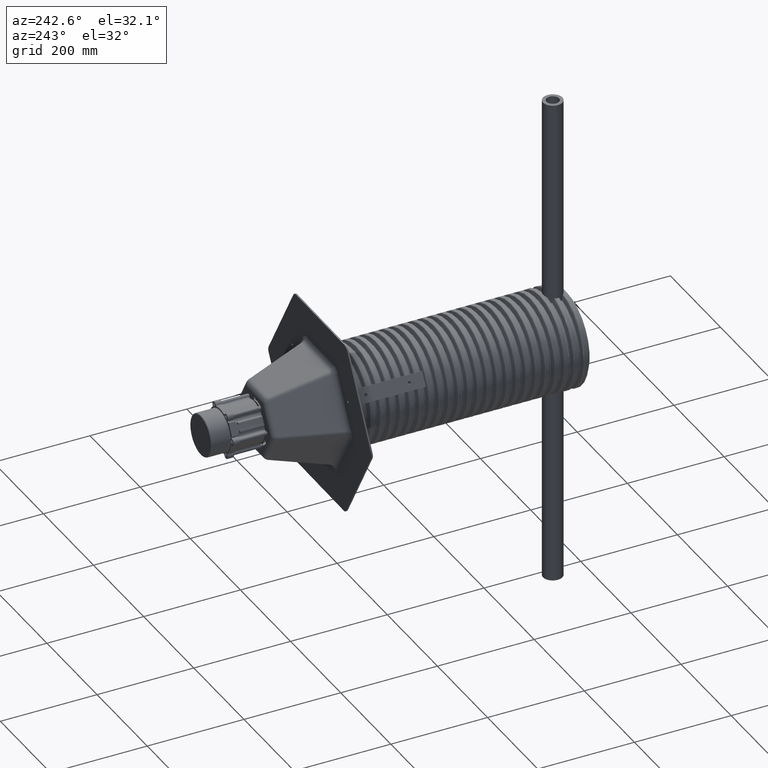
[diagram: clean part render]
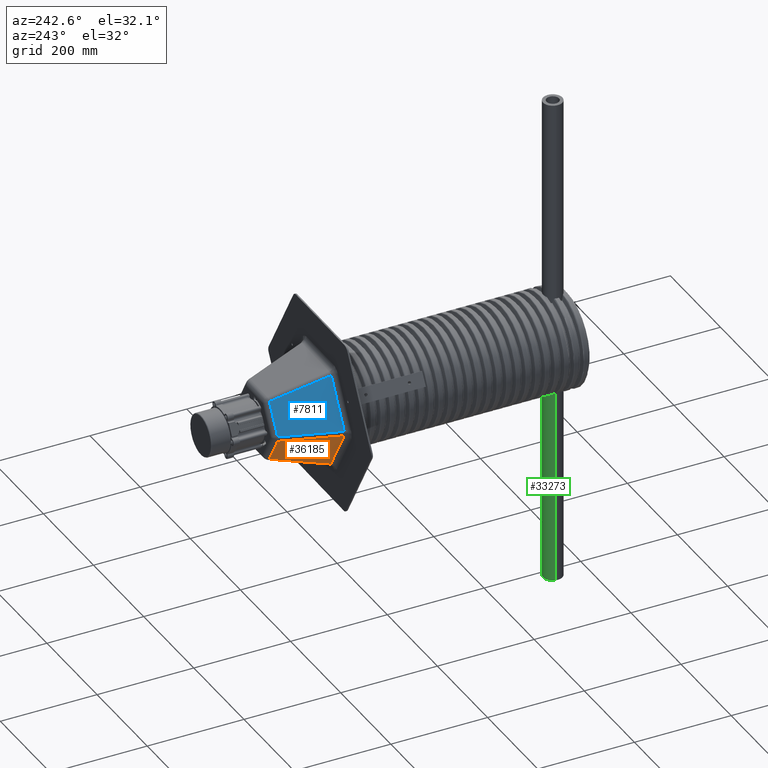
[diagram: same view with three faces highlighted in distinct colors, each labeled with its STEP entity id]
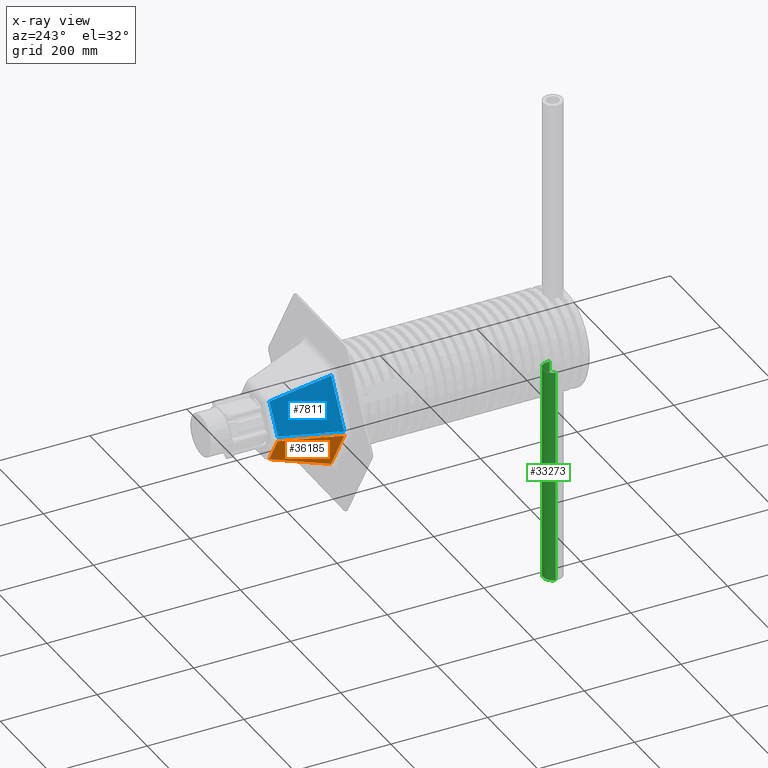
[diagram: x-ray of the same camera — body ghosted, the three highlighted faces saturated]
A machine part, auxiliary view with three faces highlighted in distinct colors.
The next image is the same camera in x-ray (body ghosted, the three faces saturated) — at least one of them is partly hidden behind the body in this view.
Their STEP definitions:

[orange] entity #36185 — the highlighted planar face has unit normal (-0.8282, 0.2752, -0.4883).
#131 = CARTESIAN_POINT ( 'NONE',  ( -4.806961960390570887, 114.1637437111403557, 11.69782613155800988 ) ) ;
#474 = VECTOR ( 'NONE', #26970, 1000.000000000000000 ) ;
#1147 = DIRECTION ( 'NONE',  ( 0.2717725502388412817, -0.1569079550387461053, 0.9494838464040530335 ) ) ;
#1220 = EDGE_CURVE ( 'NONE', #32484, #32519, #34994, .T. ) ;
#6372 = EDGE_CURVE ( 'NONE', #35927, #28192, #9954, .T. ) ;
#6414 = VECTOR ( 'NONE', #14184, 1000.000000000000000 ) ;
#9819 = CARTESIAN_POINT ( 'NONE',  ( -96.46522126478821235, 61.24482302829387237, 11.69782613155778606 ) ) ;
#9954 = LINE ( 'NONE', #16198, #474 ) ;
#10050 = ORIENTED_EDGE ( 'NONE', *, *, #20953, .T. ) ;
#10543 = CARTESIAN_POINT ( 'NONE',  ( -4.806961960390515820, 106.4063706376702783, 35.16859414319484500 ) ) ;
#12609 = DIRECTION ( 'NONE',  ( -0.4806961960390562227, 0.8325902345447354636, 0.2751811557035179212 ) ) ;
#14184 = DIRECTION ( 'NONE',  ( 2.775557561562890735E-17, 0.3138159100774921551, -0.9494838464040530335 ) ) ;
#16198 = CARTESIAN_POINT ( 'NONE',  ( -97.71001884521049874, 60.52613881015045649, 11.69782613155778606 ) ) ;
#20672 = EDGE_LOOP ( 'NONE', ( #10050, #39080, #38119, #36635 ) ) ;
#20953 = EDGE_CURVE ( 'NONE', #32519, #35927, #44501, .T. ) ;
#21050 = FACE_OUTER_BOUND ( 'NONE', #20672, .T. ) ;
#23105 = PLANE ( 'NONE',  #33392 ) ;
#23250 = CARTESIAN_POINT ( 'NONE',  ( -33.80503459952075218, 58.55203747799370007, 129.3021738684424520 ) ) ;
#24370 = VECTOR ( 'NONE', #34022, 1000.000000000000000 ) ;
#26970 = DIRECTION ( 'NONE',  ( -0.8660254037844388186, -0.4999999999999996669, 1.972629113375000996E-18 ) ) ;
#27330 = LINE ( 'NONE', #36955, #35736 ) ;
#28192 = VERTEX_POINT ( 'NONE', #9819 ) ;
#32484 = VERTEX_POINT ( 'NONE', #46305 ) ;
#32519 = VERTEX_POINT ( 'NONE', #35474 ) ;
#33392 = AXIS2_PLACEMENT_3D ( 'NONE', #34032, #12609, #37629 ) ;
#34022 = DIRECTION ( 'NONE',  ( 0.8660254037844388186, 0.4999999999999996669, -1.854289510896611901E-19 ) ) ;
#34032 = CARTESIAN_POINT ( 'NONE',  ( -48.34906166406013739, 83.74303130043291787, 27.67808602507815152 ) ) ;
#34994 = LINE ( 'NONE', #23250, #24370 ) ;
#35474 = CARTESIAN_POINT ( 'NONE',  ( -4.806961960390598421, 75.29408252217589848, 129.3021738684422246 ) ) ;
#35736 = VECTOR ( 'NONE', #1147, 1000.000000000000114 ) ;
#35927 = VERTEX_POINT ( 'NONE', #131 ) ;
#36185 = ADVANCED_FACE ( 'NONE', ( #21050 ), #23105, .T. ) ;
#36635 = ORIENTED_EDGE ( 'NONE', *, *, #1220, .T. ) ;
#36955 = CARTESIAN_POINT ( 'NONE',  ( -89.74713911652989395, 57.36613649155891892, 35.16859414319461763 ) ) ;
#37629 = DIRECTION ( 'NONE',  ( -0.8660254037844388186, -0.4999999999999996669, 2.761013168273541319E-30 ) ) ;
#38119 = ORIENTED_EDGE ( 'NONE', *, *, #46111, .T. ) ;
#39080 = ORIENTED_EDGE ( 'NONE', *, *, #6372, .T. ) ;
#44501 = LINE ( 'NONE', #10543, #6414 ) ;
#46111 = EDGE_CURVE ( 'NONE', #28192, #32484, #27330, .T. ) ;
#46305 = CARTESIAN_POINT ( 'NONE',  ( -62.80310723865100897, 41.80999243381167219, 129.3021738684422246 ) ) ;

[blue] entity #7811 — the highlighted planar face has unit normal (-0.8369, 0.2752, 0.4731).
#1393 = ORIENTED_EDGE ( 'NONE', *, *, #41522, .T. ) ;
#1433 = CARTESIAN_POINT ( 'NONE',  ( -101.2721832251786935, -52.91892068284654016, 11.69782613155800988 ) ) ;
#3391 = VERTEX_POINT ( 'NONE', #26118 ) ;
#3745 = DIRECTION ( 'NONE',  ( 0.2717725502388411707, 0.1569079550387463828, 0.9494838464040530335 ) ) ;
#7811 = ADVANCED_FACE ( 'NONE', ( #44491 ), #27532, .T. ) ;
#7951 = CARTESIAN_POINT ( 'NONE',  ( -67.61006919904150436, -1.110223024625156540E-13, 129.3021738684424520 ) ) ;
#10398 = CARTESIAN_POINT ( 'NONE',  ( -101.2721832251786935, -54.35628911913348560, 11.69782613155800988 ) ) ;
#14155 = VERTEX_POINT ( 'NONE', #43612 ) ;
#15491 = VERTEX_POINT ( 'NONE', #1433 ) ;
#17335 = ORIENTED_EDGE ( 'NONE', *, *, #43075, .T. ) ;
#18529 = ORIENTED_EDGE ( 'NONE', *, *, #44082, .T. ) ;
#19084 = ORIENTED_EDGE ( 'NONE', *, *, #37722, .T. ) ;
#20366 = LINE ( 'NONE', #10398, #28704 ) ;
#20532 = CARTESIAN_POINT ( 'NONE',  ( -96.69812332812041689, -2.220446049250313081E-13, 27.67808602507815152 ) ) ;
#21962 = VECTOR ( 'NONE', #22354, 1000.000000000000000 ) ;
#22354 = DIRECTION ( 'NONE',  ( -4.440892098500626162E-16, 1.000000000000000000, -3.944304526105059027E-31 ) ) ;
#23233 = LINE ( 'NONE', #28729, #33856 ) ;
#24128 = DIRECTION ( 'NONE',  ( 0.2751811557035178657, 0.0000000000000000000, 0.9613923920781131116 ) ) ;
#26118 = CARTESIAN_POINT ( 'NONE',  ( -67.61006919904153278, -33.48409008836428313, 129.3021738684422246 ) ) ;
#27532 = PLANE ( 'NONE',  #40512 ) ;
#28704 = VECTOR ( 'NONE', #32005, 1000.000000000000000 ) ;
#28729 = CARTESIAN_POINT ( 'NONE',  ( -94.55410107692038935, -49.04023414611158671, 35.16859414319484500 ) ) ;
#30868 = CARTESIAN_POINT ( 'NONE',  ( -67.61006919904156121, 33.48409008836416945, 129.3021738684422246 ) ) ;
#31431 = LINE ( 'NONE', #7951, #21962 ) ;
#32005 = DIRECTION ( 'NONE',  ( 4.440892098500626162E-16, -1.000000000000000000, 3.944304526105059027E-31 ) ) ;
#33479 = VERTEX_POINT ( 'NONE', #30868 ) ;
#33856 = VECTOR ( 'NONE', #3745, 1000.000000000000000 ) ;
#35049 = LINE ( 'NONE', #36605, #44601 ) ;
#36605 = CARTESIAN_POINT ( 'NONE',  ( -94.55410107692038935, 49.04023414611141618, 35.16859414319461763 ) ) ;
#37722 = EDGE_CURVE ( 'NONE', #15491, #3391, #23233, .T. ) ;
#40512 = AXIS2_PLACEMENT_3D ( 'NONE', #20532, #45560, #24128 ) ;
#41507 = EDGE_LOOP ( 'NONE', ( #1393, #17335, #19084, #18529 ) ) ;
#41522 = EDGE_CURVE ( 'NONE', #33479, #14155, #35049, .T. ) ;
#43075 = EDGE_CURVE ( 'NONE', #14155, #15491, #20366, .T. ) ;
#43508 = DIRECTION ( 'NONE',  ( -0.2717725502388412817, 0.1569079550387461330, -0.9494838464040530335 ) ) ;
#43612 = CARTESIAN_POINT ( 'NONE',  ( -101.2721832251787788, 52.91892068284642647, 11.69782613155778606 ) ) ;
#44082 = EDGE_CURVE ( 'NONE', #3391, #33479, #31431, .T. ) ;
#44491 = FACE_OUTER_BOUND ( 'NONE', #41507, .T. ) ;
#44601 = VECTOR ( 'NONE', #43508, 1000.000000000000114 ) ;
#45560 = DIRECTION ( 'NONE',  ( -0.9613923920781131116, -3.330669073875470114E-16, 0.2751811557035178657 ) ) ;

[green] entity #33273 — the highlighted cylindrical surface (edge-blend (fillet) strip) has radius 20 mm, axis along (0, 0, 1).
#385 = DIRECTION ( 'NONE',  ( 4.314083075427410500E-32, -6.162975822039156919E-32, 1.000000000000000000 ) ) ;
#2059 = AXIS2_PLACEMENT_3D ( 'NONE', #33090, #18848, #36671 ) ;
#3457 = EDGE_CURVE ( 'NONE', #7302, #6101, #34879, .T. ) ;
#6101 = VERTEX_POINT ( 'NONE', #15031 ) ;
#6591 = VECTOR ( 'NONE', #43735, 1000.000000000000000 ) ;
#7302 = VERTEX_POINT ( 'NONE', #38027 ) ;
#9446 = EDGE_LOOP ( 'NONE', ( #30024, #34590, #24711, #13443 ) ) ;
#10118 = CYLINDRICAL_SURFACE ( 'NONE', #2059, 20.00000000000001776 ) ;
#11133 = DIRECTION ( 'NONE',  ( 4.314083075427410500E-32, -6.162975822039156919E-32, 1.000000000000000000 ) ) ;
#11241 = FACE_OUTER_BOUND ( 'NONE', #9446, .T. ) ;
#13443 = ORIENTED_EDGE ( 'NONE', *, *, #3457, .F. ) ;
#15031 = CARTESIAN_POINT ( 'NONE',  ( -20.00000000000000000, 1.388033386926172388E-29, 8.628166150854821877E-31 ) ) ;
#15853 = VECTOR ( 'NONE', #23039, 1000.000000000000000 ) ;
#16270 = VERTEX_POINT ( 'NONE', #42052 ) ;
#18848 = DIRECTION ( 'NONE',  ( -4.314083075427410500E-32, 6.162975822039156919E-32, -1.000000000000000000 ) ) ;
#19366 = EDGE_CURVE ( 'NONE', #24941, #7302, #34887, .T. ) ;
#21831 = CARTESIAN_POINT ( 'NONE',  ( 0.0000000000000000000, 0.0000000000000000000, 0.0000000000000000000 ) ) ;
#23039 = DIRECTION ( 'NONE',  ( -4.314083075427410500E-32, 6.162975822039156919E-32, -1.000000000000000000 ) ) ;
#24513 = LINE ( 'NONE', #40141, #6591 ) ;
#24711 = ORIENTED_EDGE ( 'NONE', *, *, #45933, .T. ) ;
#24941 = VERTEX_POINT ( 'NONE', #38190 ) ;
#25380 = DIRECTION ( 'NONE',  ( 1.000000000000000000, -6.819134836819593232E-34, 4.930380657631319405E-32 ) ) ;
#25704 = EDGE_CURVE ( 'NONE', #24941, #16270, #24513, .T. ) ;
#30024 = ORIENTED_EDGE ( 'NONE', *, *, #19366, .F. ) ;
#30203 = CARTESIAN_POINT ( 'NONE',  ( -20.00000000000001776, 1.363826967363919878E-32, 449.9999999999996021 ) ) ;
#32605 = CARTESIAN_POINT ( 'NONE',  ( 0.0000000000000000000, 0.0000000000000000000, 449.9999999999996021 ) ) ;
#32692 = AXIS2_PLACEMENT_3D ( 'NONE', #32605, #11133, #36170 ) ;
#33090 = CARTESIAN_POINT ( 'NONE',  ( 0.0000000000000000000, 0.0000000000000000000, 449.9999999999996021 ) ) ;
#33273 = ADVANCED_FACE ( 'NONE', ( #11241 ), #10118, .T. ) ;
#34590 = ORIENTED_EDGE ( 'NONE', *, *, #25704, .T. ) ;
#34879 = LINE ( 'NONE', #30203, #15853 ) ;
#34887 = CIRCLE ( 'NONE', #32692, 20.00000000000001776 ) ;
#36170 = DIRECTION ( 'NONE',  ( 1.000000000000000000, -6.819134836819593232E-34, 0.0000000000000000000 ) ) ;
#36671 = DIRECTION ( 'NONE',  ( -1.000000000000000000, 6.819134836819593232E-34, 0.0000000000000000000 ) ) ;
#38027 = CARTESIAN_POINT ( 'NONE',  ( -20.00000000000000000, 1.388033386926172388E-29, 449.9999999999996021 ) ) ;
#38190 = CARTESIAN_POINT ( 'NONE',  ( 20.00000000000000000, 2.449293598294719135E-15, 449.9999999999996021 ) ) ;
#40141 = CARTESIAN_POINT ( 'NONE',  ( 20.00000000000001776, 2.449293598294707696E-15, 449.9999999999996021 ) ) ;
#42052 = CARTESIAN_POINT ( 'NONE',  ( 20.00000000000000000, 2.449293598294719135E-15, -8.628166150854806112E-31 ) ) ;
#43020 = AXIS2_PLACEMENT_3D ( 'NONE', #21831, #385, #25380 ) ;
#43636 = CIRCLE ( 'NONE', #43020, 20.00000000000001776 ) ;
#43735 = DIRECTION ( 'NONE',  ( -4.314083075427410500E-32, 6.162975822039156919E-32, -1.000000000000000000 ) ) ;
#45933 = EDGE_CURVE ( 'NONE', #16270, #6101, #43636, .T. ) ;